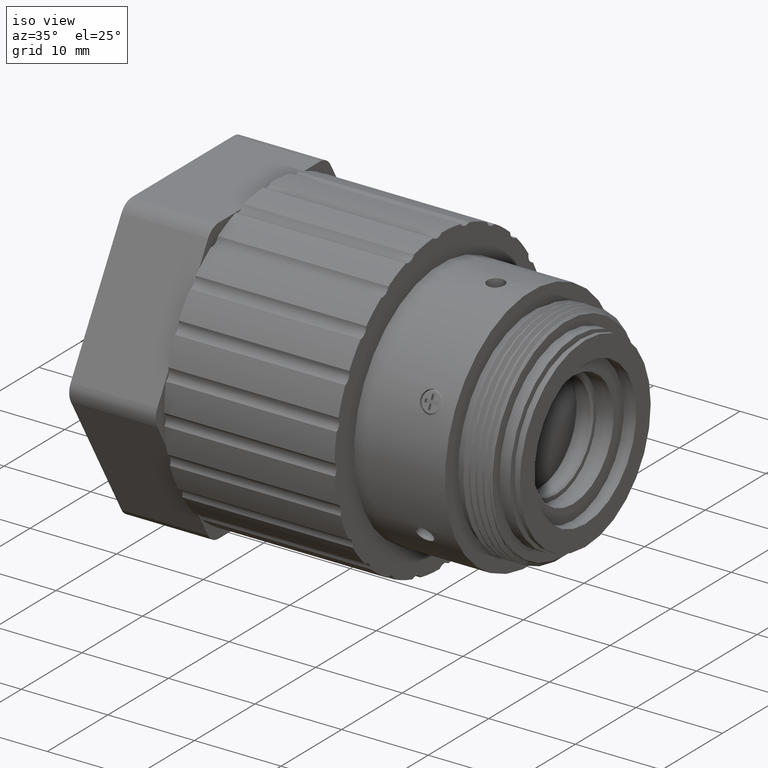
[diagram: clean part render]
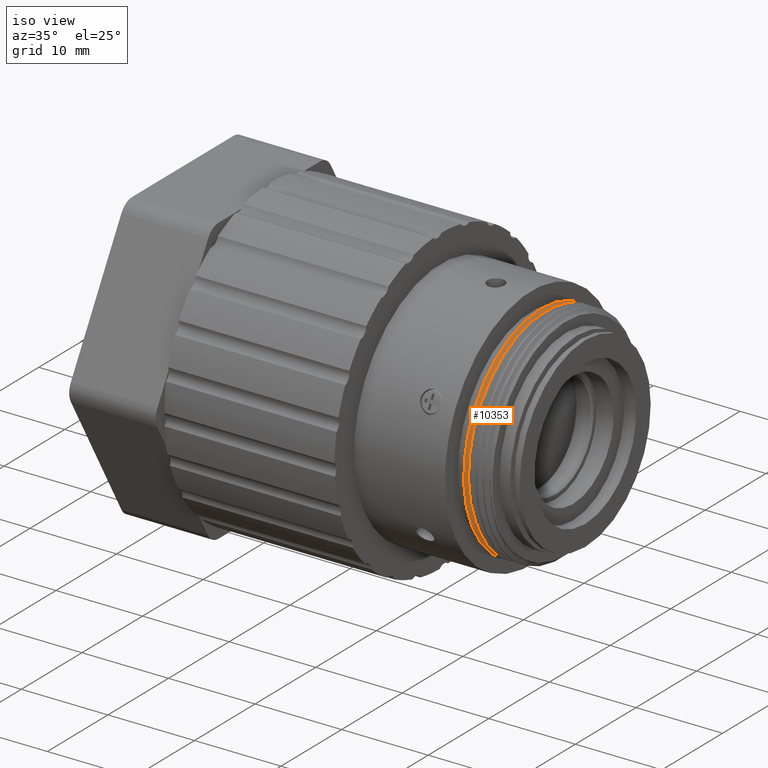
[diagram: same view with one face highlighted and labeled with its STEP entity id]
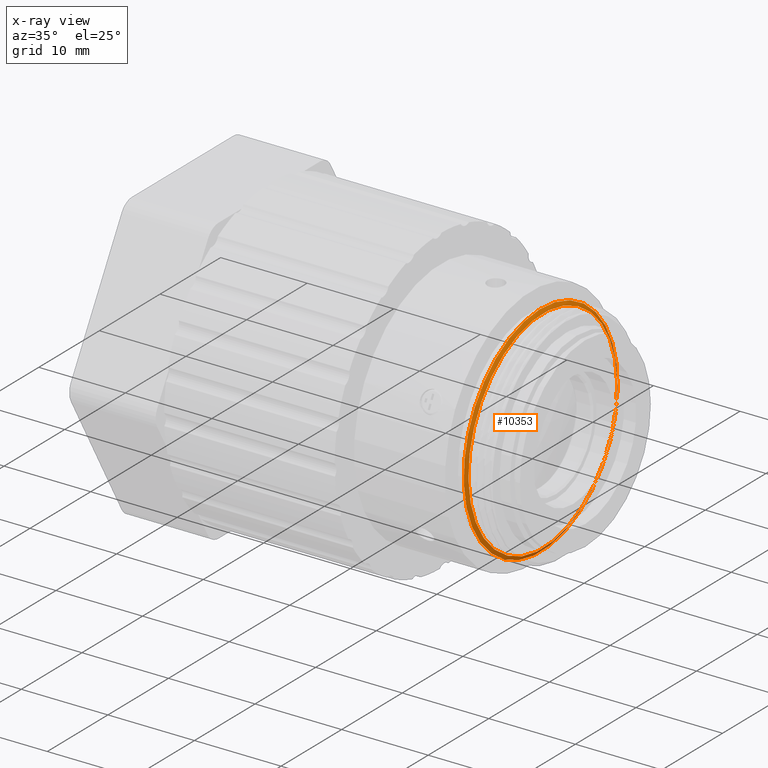
[diagram: x-ray of the same camera — body ghosted, the highlighted face saturated]
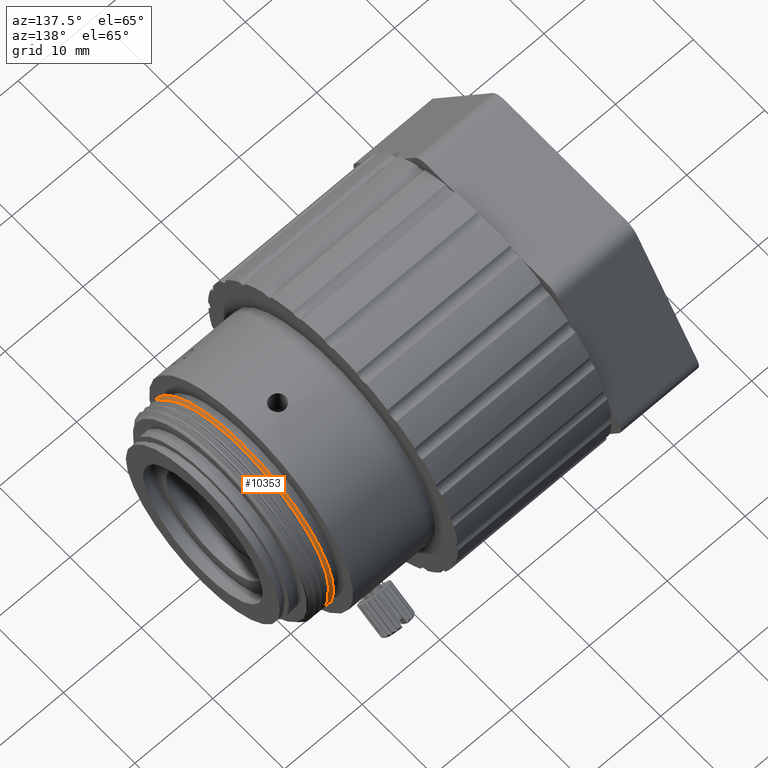
[diagram: same view with one face highlighted and labeled with its STEP entity id]
A machine part, iso view. The second image highlights one B-rep face of the part: STEP entity #10353.
The next image is the same camera in x-ray: the body ghosted, the highlighted face saturated — about 5% of this face is hidden behind the body in this view.
A second angle (auxiliary view) of the same face is appended — the face is thin or edge-on in the first view.
In plain terms, the highlighted conical surface has half-angle 60 deg.
Its self-contained STEP definition (entity closure, byte-faithful):
#10 = DIRECTION ( 'NONE',  ( -1.000000000000000000, 0.000000000000000000, 0.000000000000000000 ) ) ;
#538 = EDGE_LOOP ( 'NONE', ( #12099 ) ) ;
#924 = CONICAL_SURFACE ( 'NONE', #9095, 12.69999999877113872, 1.047197551196560328 ) ;
#1509 = DIRECTION ( 'NONE',  ( 0.000000000000000000, -0.4724273177222766962, -0.8813696327136163466 ) ) ;
#1924 = EDGE_CURVE ( 'NONE', #6766, #6766, #2096, .T. ) ;
#2096 = CIRCLE ( 'NONE', #2625, 12.69999999877113872 ) ;
#2625 = AXIS2_PLACEMENT_3D ( 'NONE', #9895, #10, #1509 ) ;
#3731 = EDGE_CURVE ( 'NONE', #10135, #10135, #13104, .T. ) ;
#6766 = VERTEX_POINT ( 'NONE', #11415 ) ;
#7248 = FACE_BOUND ( 'NONE', #14534, .T. ) ;
#8424 = CARTESIAN_POINT ( 'NONE',  ( 20.05630257356783019, 3.111155698412859660, 46.50038591147875877 ) ) ;
#8610 = CARTESIAN_POINT ( 'NONE',  ( 19.80825839199074068, 3.111155698412859660, 46.50038591147875877 ) ) ;
#9095 = AXIS2_PLACEMENT_3D ( 'NONE', #8610, #13556, #14749 ) ;
#9895 = CARTESIAN_POINT ( 'NONE',  ( 19.80825839199074068, 3.111155698412859660, 46.50038591147875877 ) ) ;
#10135 = VERTEX_POINT ( 'NONE', #12762 ) ;
#10353 = ADVANCED_FACE ( 'NONE', ( #14583, #7248 ), #924, .T. ) ;
#11415 = CARTESIAN_POINT ( 'NONE',  ( 19.80825839199074068, -2.888671236079507487, 35.30699157709891267 ) ) ;
#12098 = DIRECTION ( 'NONE',  ( 0.000000000000000000, -0.4724273177222769182, -0.8813696327136163466 ) ) ;
#12099 = ORIENTED_EDGE ( 'NONE', *, *, #1924, .F. ) ;
#12762 = CARTESIAN_POINT ( 'NONE',  ( 20.05630257356783019, -2.685704590643418488, 35.68565011573635104 ) ) ;
#13104 = CIRCLE ( 'NONE', #14632, 12.27037487375792324 ) ;
#13556 = DIRECTION ( 'NONE',  ( -1.000000000000000000, 7.704857161722492824E-15, -4.129918784629345111E-15 ) ) ;
#14199 = ORIENTED_EDGE ( 'NONE', *, *, #3731, .T. ) ;
#14534 = EDGE_LOOP ( 'NONE', ( #14199 ) ) ;
#14583 = FACE_OUTER_BOUND ( 'NONE', #538, .T. ) ;
#14632 = AXIS2_PLACEMENT_3D ( 'NONE', #8424, #15683, #12098 ) ;
#14749 = DIRECTION ( 'NONE',  ( 8.741913580571515760E-15, 0.8813696327136164577, -0.4724273177222765852 ) ) ;
#15683 = DIRECTION ( 'NONE',  ( -1.000000000000000000, 0.000000000000000000, 0.000000000000000000 ) ) ;